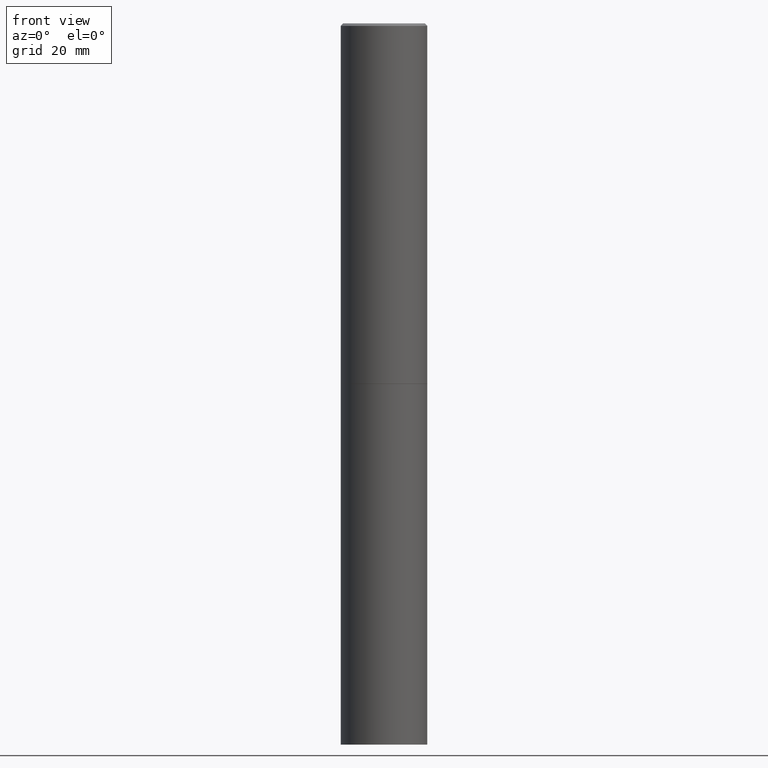
[diagram: clean part render]
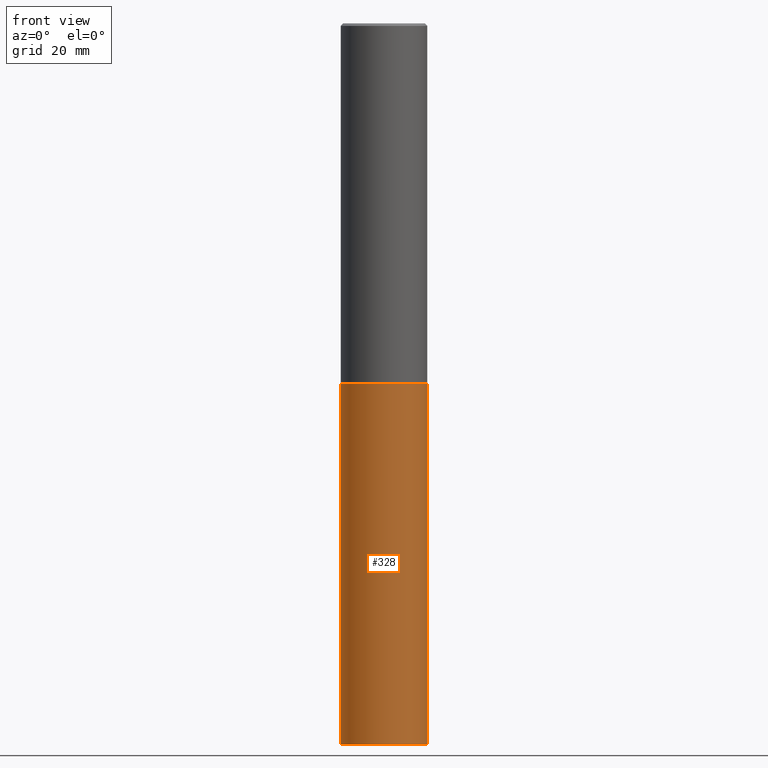
[diagram: same view with one face highlighted and labeled with its STEP entity id]
A machine part, front view. The second image highlights one B-rep face of the part: STEP entity #328.
In plain terms, the highlighted cylindrical surface (partial cylindrical patch) has radius 9.0005 mm, axis along (-0, 0, 1).
Its self-contained STEP definition (entity closure, byte-faithful):
#10 = EDGE_CURVE ( 'NONE', #228, #273, #220, .T. ) ;
#25 = CYLINDRICAL_SURFACE ( 'NONE', #179, 0.3543499999999999983 ) ;
#27 = DIRECTION ( 'NONE',  ( -2.445468806185136597E-29, 3.491481338843145583E-15, 1.000000000000000000 ) ) ;
#28 = ORIENTED_EDGE ( 'NONE', *, *, #84, .F. ) ;
#40 = DIRECTION ( 'NONE',  ( 1.000000000000000000, -6.982962677686265922E-15, 0.000000000000000000 ) ) ;
#49 = CARTESIAN_POINT ( 'NONE',  ( -0.3543499999999999983, -1.294631181370425968E-14, -5.905499999999999972 ) ) ;
#75 = AXIS2_PLACEMENT_3D ( 'NONE', #171, #317, #88 ) ;
#76 = DIRECTION ( 'NONE',  ( -2.445468806185136597E-29, 3.491481338843145583E-15, 1.000000000000000000 ) ) ;
#84 = EDGE_CURVE ( 'NONE', #228, #133, #192, .T. ) ;
#88 = DIRECTION ( 'NONE',  ( 1.000000000000000000, -6.982962677686271444E-15, 0.000000000000000000 ) ) ;
#92 = VERTEX_POINT ( 'NONE', #330 ) ;
#96 = CIRCLE ( 'NONE', #301, 0.3543499999999999983 ) ;
#112 = ORIENTED_EDGE ( 'NONE', *, *, #303, .T. ) ;
#133 = VERTEX_POINT ( 'NONE', #222 ) ;
#148 = VECTOR ( 'NONE', #335, 39.37007874015748143 ) ;
#171 = CARTESIAN_POINT ( 'NONE',  ( 1.444171603492632270E-28, -2.061894304653819197E-14, -5.905499999999999972 ) ) ;
#174 = CARTESIAN_POINT ( 'NONE',  ( 0.000000000000000000, 0.000000000000000000, 0.000000000000000000 ) ) ;
#179 = AXIS2_PLACEMENT_3D ( 'NONE', #174, #27, #308 ) ;
#187 = EDGE_CURVE ( 'NONE', #133, #92, #96, .T. ) ;
#191 = CARTESIAN_POINT ( 'NONE',  ( -0.3543499999999999983, 2.517808184165914997E-15, -1.743024649231826066E-29 ) ) ;
#192 = LINE ( 'NONE', #191, #279 ) ;
#197 = CARTESIAN_POINT ( 'NONE',  ( 0.3543499999999999983, -2.309335587137632500E-14, -5.905499999999999972 ) ) ;
#199 = LINE ( 'NONE', #285, #148 ) ;
#218 = CARTESIAN_POINT ( 'NONE',  ( 7.220735744022852519E-29, -1.030929694920215502E-14, -2.952700000000000102 ) ) ;
#220 = CIRCLE ( 'NONE', #75, 0.3543499999999999983 ) ;
#222 = CARTESIAN_POINT ( 'NONE',  ( -0.3543499999999999983, -1.294631181370425968E-14, -2.952700000000000102 ) ) ;
#226 = EDGE_LOOP ( 'NONE', ( #28, #336, #112, #252 ) ) ;
#228 = VERTEX_POINT ( 'NONE', #49 ) ;
#252 = ORIENTED_EDGE ( 'NONE', *, *, #187, .F. ) ;
#273 = VERTEX_POINT ( 'NONE', #197 ) ;
#279 = VECTOR ( 'NONE', #299, 39.37007874015748143 ) ;
#280 = FACE_OUTER_BOUND ( 'NONE', #226, .T. ) ;
#285 = CARTESIAN_POINT ( 'NONE',  ( 0.3543499999999999983, -2.474412824838128694E-15, 1.727873240503289749E-29 ) ) ;
#299 = DIRECTION ( 'NONE',  ( -2.445468806185136877E-29, 3.491481338843145188E-15, 1.000000000000000000 ) ) ;
#301 = AXIS2_PLACEMENT_3D ( 'NONE', #218, #76, #40 ) ;
#303 = EDGE_CURVE ( 'NONE', #273, #92, #199, .T. ) ;
#308 = DIRECTION ( 'NONE',  ( 1.000000000000000000, -6.982962677686266711E-15, 4.876176775795935793E-29 ) ) ;
#317 = DIRECTION ( 'NONE',  ( -2.445468806185136597E-29, 3.491481338843145583E-15, 1.000000000000000000 ) ) ;
#328 = ADVANCED_FACE ( 'NONE', ( #280 ), #25, .T. ) ;
#330 = CARTESIAN_POINT ( 'NONE',  ( 0.3543499999999999983, -1.278370977404028332E-14, -2.952700000000000102 ) ) ;
#335 = DIRECTION ( 'NONE',  ( -2.445468806185136877E-29, 3.491481338843145188E-15, 1.000000000000000000 ) ) ;
#336 = ORIENTED_EDGE ( 'NONE', *, *, #10, .T. ) ;